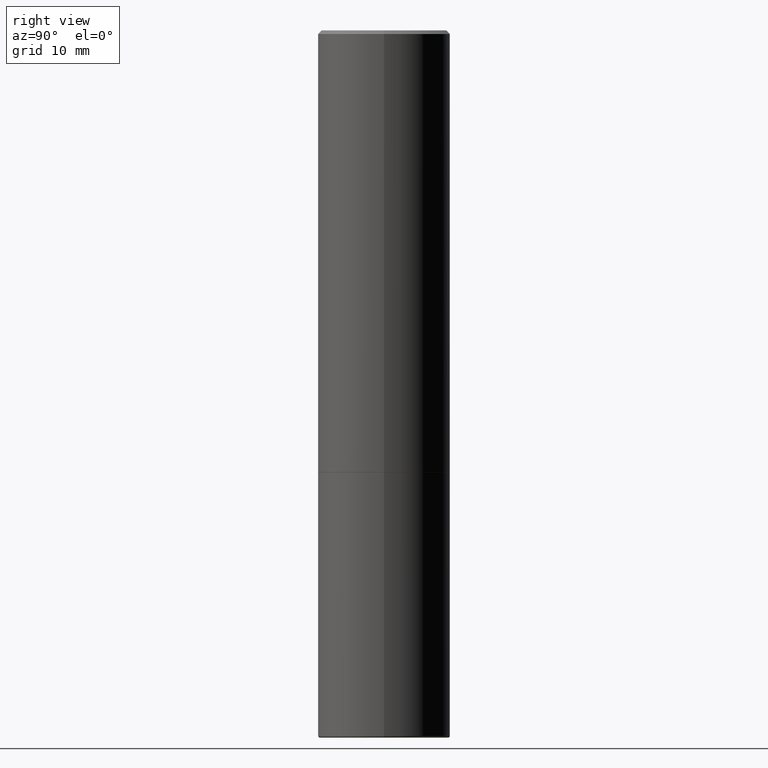
[diagram: clean part render]
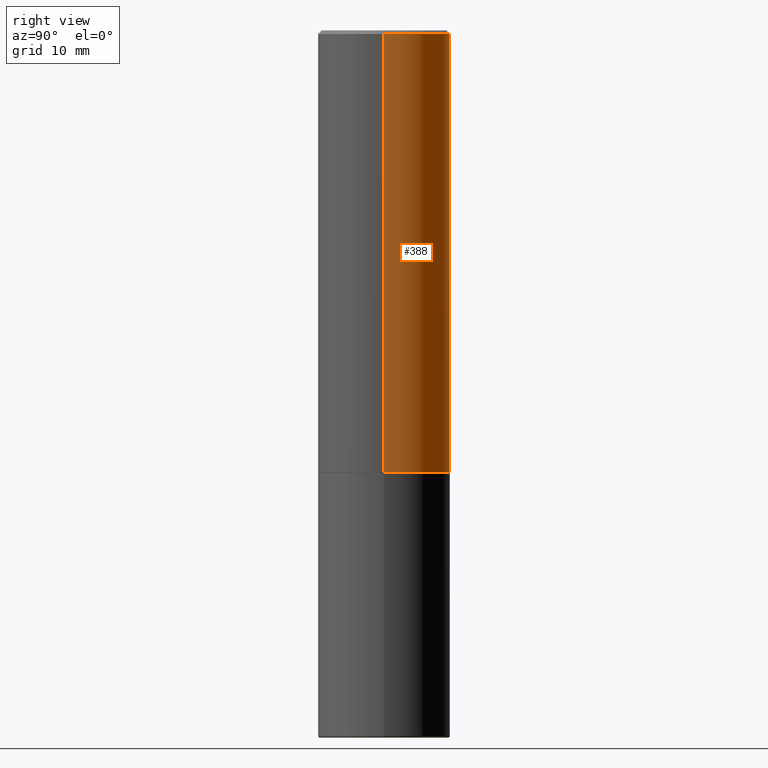
[diagram: same view with one face highlighted and labeled with its STEP entity id]
A machine part, right view. The second image highlights one B-rep face of the part: STEP entity #388.
In plain terms, the highlighted cylindrical surface (partial cylindrical patch) has radius 9.525 mm, axis along (-0, 0, 1).
Its self-contained STEP definition (entity closure, byte-faithful):
#6 = DIRECTION ( 'NONE',  ( -2.445468806185136597E-29, 3.491481338843145583E-15, 1.000000000000000000 ) ) ;
#11 = VERTEX_POINT ( 'NONE', #324 ) ;
#13 = DIRECTION ( 'NONE',  ( -2.445468806185136877E-29, 3.491481338843145188E-15, 1.000000000000000000 ) ) ;
#17 = FACE_OUTER_BOUND ( 'NONE', #212, .T. ) ;
#20 = DIRECTION ( 'NONE',  ( 1.000000000000000000, -6.982962677686265922E-15, 0.000000000000000000 ) ) ;
#71 = EDGE_CURVE ( 'NONE', #210, #363, #169, .T. ) ;
#78 = AXIS2_PLACEMENT_3D ( 'NONE', #161, #417, #20 ) ;
#82 = CYLINDRICAL_SURFACE ( 'NONE', #135, 0.3750000000000002220 ) ;
#95 = LINE ( 'NONE', #173, #253 ) ;
#120 = CARTESIAN_POINT ( 'NONE',  ( -0.3750000000000001110, 2.548781377355487113E-15, -0.02000000000000008715 ) ) ;
#135 = AXIS2_PLACEMENT_3D ( 'NONE', #229, #198, #381 ) ;
#151 = AXIS2_PLACEMENT_3D ( 'NONE', #234, #6, #199 ) ;
#161 = CARTESIAN_POINT ( 'NONE',  ( 6.111226546656657010E-29, -8.725211865769021935E-15, -2.499000000000000110 ) ) ;
#163 = CARTESIAN_POINT ( 'NONE',  ( 0.3750000000000001110, -2.642516375941188423E-15, -0.02000000000000008715 ) ) ;
#167 = LINE ( 'NONE', #349, #184 ) ;
#169 = CIRCLE ( 'NONE', #151, 0.3750000000000001110 ) ;
#171 = EDGE_CURVE ( 'NONE', #11, #363, #95, .T. ) ;
#172 = ORIENTED_EDGE ( 'NONE', *, *, #352, .T. ) ;
#173 = CARTESIAN_POINT ( 'NONE',  ( -0.3750000000000002220, 2.664535259100377275E-15, -1.844600658845590719E-29 ) ) ;
#184 = VECTOR ( 'NONE', #197, 39.37007874015748143 ) ;
#197 = DIRECTION ( 'NONE',  ( -2.445468806185136877E-29, 3.491481338843145188E-15, 1.000000000000000000 ) ) ;
#198 = DIRECTION ( 'NONE',  ( -2.445468806185136597E-29, 3.491481338843145583E-15, 1.000000000000000000 ) ) ;
#199 = DIRECTION ( 'NONE',  ( 1.000000000000000000, -6.982962677686265922E-15, 0.000000000000000000 ) ) ;
#210 = VERTEX_POINT ( 'NONE', #163 ) ;
#212 = EDGE_LOOP ( 'NONE', ( #172, #365, #243, #277 ) ) ;
#229 = CARTESIAN_POINT ( 'NONE',  ( 0.000000000000000000, 0.000000000000000000, 0.000000000000000000 ) ) ;
#234 = CARTESIAN_POINT ( 'NONE',  ( 4.890937612370294178E-31, -6.982962677686321191E-17, -0.02000000000000008715 ) ) ;
#243 = ORIENTED_EDGE ( 'NONE', *, *, #71, .F. ) ;
#245 = CIRCLE ( 'NONE', #78, 0.3750000000000002776 ) ;
#253 = VECTOR ( 'NONE', #13, 39.37007874015748143 ) ;
#277 = ORIENTED_EDGE ( 'NONE', *, *, #294, .F. ) ;
#288 = CARTESIAN_POINT ( 'NONE',  ( 0.3750000000000002776, -1.134382286990137353E-14, -2.499000000000000110 ) ) ;
#294 = EDGE_CURVE ( 'NONE', #370, #210, #167, .T. ) ;
#324 = CARTESIAN_POINT ( 'NONE',  ( -0.3750000000000002776, -1.732985487172563764E-15, -2.499000000000000110 ) ) ;
#349 = CARTESIAN_POINT ( 'NONE',  ( 0.3750000000000002220, -2.618611004132351594E-15, 1.828566290923477043E-29 ) ) ;
#352 = EDGE_CURVE ( 'NONE', #370, #11, #245, .T. ) ;
#363 = VERTEX_POINT ( 'NONE', #120 ) ;
#365 = ORIENTED_EDGE ( 'NONE', *, *, #171, .T. ) ;
#370 = VERTEX_POINT ( 'NONE', #288 ) ;
#381 = DIRECTION ( 'NONE',  ( 1.000000000000000000, -6.982962677686266711E-15, 4.876176775795935793E-29 ) ) ;
#388 = ADVANCED_FACE ( 'NONE', ( #17 ), #82, .T. ) ;
#417 = DIRECTION ( 'NONE',  ( -2.445468806185136597E-29, 3.491481338843145583E-15, 1.000000000000000000 ) ) ;